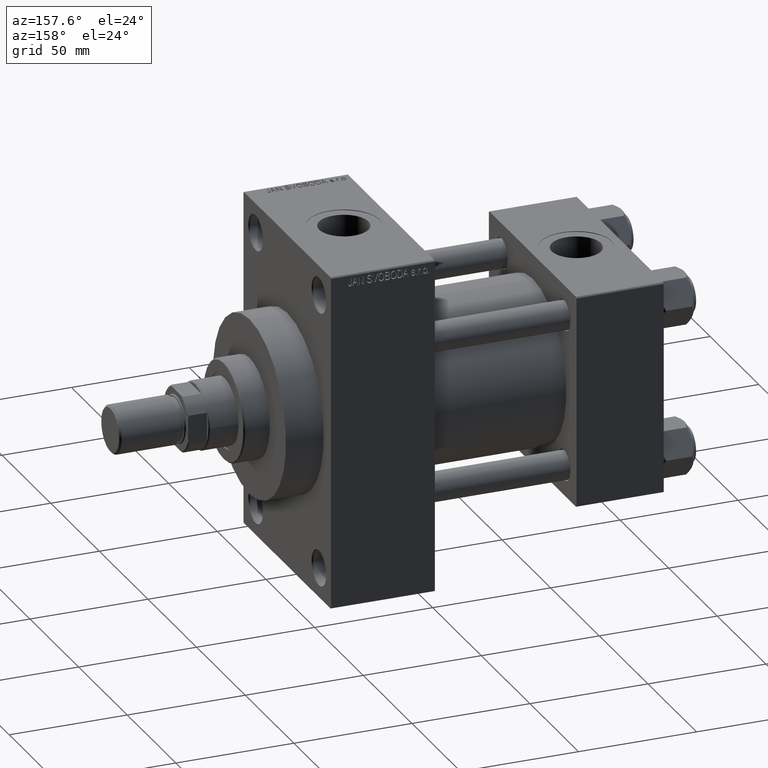
[diagram: clean part render]
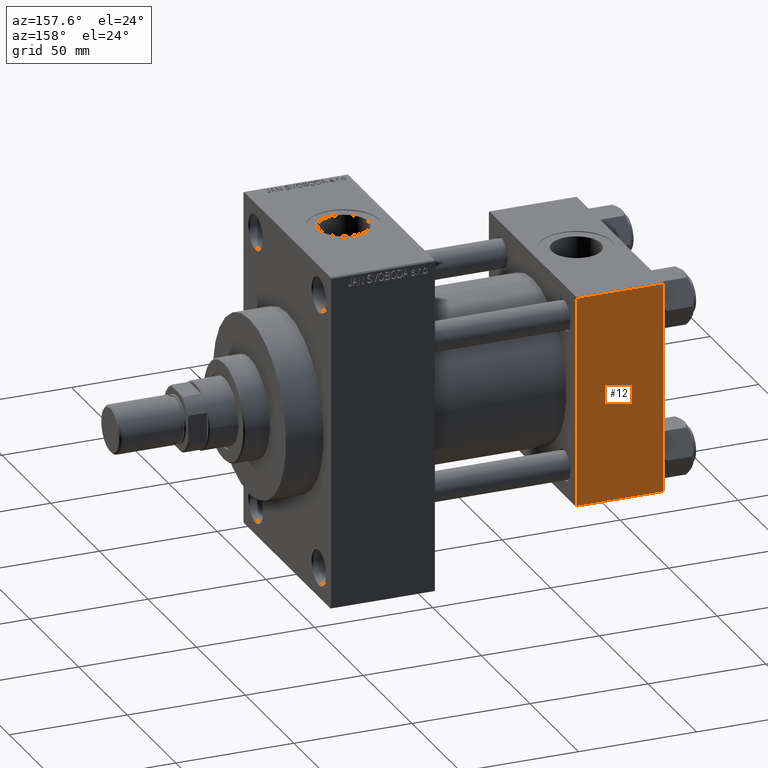
[diagram: same view with one face highlighted and labeled with its STEP entity id]
A machine part, auxiliary view. The second image highlights one B-rep face of the part: STEP entity #12.
In plain terms, the highlighted planar face has unit normal (0, 1, 0).
Its self-contained STEP definition (entity closure, byte-faithful):
#12 = ADVANCED_FACE ( 'NONE', ( #41352 ), #635, .T. ) ;
#635 = PLANE ( 'NONE',  #32876 ) ;
#2261 = DIRECTION ( 'NONE',  ( 0.000000000000000000, 0.000000000000000000, -1.000000000000000000 ) ) ;
#2811 = VERTEX_POINT ( 'NONE', #47557 ) ;
#3410 = VERTEX_POINT ( 'NONE', #16994 ) ;
#4137 = LINE ( 'NONE', #26313, #22432 ) ;
#4480 = DIRECTION ( 'NONE',  ( 0.000000000000000000, -0.000000000000000000, 1.000000000000000000 ) ) ;
#4626 = DIRECTION ( 'NONE',  ( -1.000000000000000000, 0.000000000000000000, 0.000000000000000000 ) ) ;
#4683 = VECTOR ( 'NONE', #12427, 1000.000000000000000 ) ;
#6075 = VERTEX_POINT ( 'NONE', #22780 ) ;
#7868 = ORIENTED_EDGE ( 'NONE', *, *, #12443, .T. ) ;
#8262 = ORIENTED_EDGE ( 'NONE', *, *, #10533, .F. ) ;
#8807 = VERTEX_POINT ( 'NONE', #33719 ) ;
#10533 = EDGE_CURVE ( 'NONE', #6075, #8807, #42755, .T. ) ;
#11894 = EDGE_CURVE ( 'NONE', #3410, #8807, #37172, .T. ) ;
#12427 = DIRECTION ( 'NONE',  ( 1.000000000000000000, 0.000000000000000000, 0.000000000000000000 ) ) ;
#12443 = EDGE_CURVE ( 'NONE', #6075, #2811, #23247, .T. ) ;
#13538 = ORIENTED_EDGE ( 'NONE', *, *, #11894, .T. ) ;
#15725 = CARTESIAN_POINT ( 'NONE',  ( 37.00000000000000000, 44.99999999999998579, -44.49999999999998579 ) ) ;
#16992 = VECTOR ( 'NONE', #4626, 1000.000000000000000 ) ;
#16994 = CARTESIAN_POINT ( 'NONE',  ( 37.00000000000000000, 44.99999999999998579, -44.49999999999995737 ) ) ;
#18858 = DIRECTION ( 'NONE',  ( 0.000000000000000000, 0.000000000000000000, -1.000000000000000000 ) ) ;
#22432 = VECTOR ( 'NONE', #18858, 1000.000000000000000 ) ;
#22567 = CARTESIAN_POINT ( 'NONE',  ( 37.00000000000000000, 44.99999999999998579, 45.00000000000001421 ) ) ;
#22780 = CARTESIAN_POINT ( 'NONE',  ( 0.000000000000000000, 44.99999999999998579, 44.50000000000001421 ) ) ;
#23247 = LINE ( 'NONE', #45432, #4683 ) ;
#26156 = VECTOR ( 'NONE', #2261, 1000.000000000000000 ) ;
#26313 = CARTESIAN_POINT ( 'NONE',  ( 37.00000000000000000, 44.99999999999998579, 45.00000000000001421 ) ) ;
#31915 = CARTESIAN_POINT ( 'NONE',  ( 0.000000000000000000, 44.99999999999998579, 45.00000000000001421 ) ) ;
#32876 = AXIS2_PLACEMENT_3D ( 'NONE', #22567, #44982, #4480 ) ;
#33719 = CARTESIAN_POINT ( 'NONE',  ( 0.000000000000000000, 44.99999999999998579, -44.49999999999995737 ) ) ;
#36043 = ORIENTED_EDGE ( 'NONE', *, *, #37430, .T. ) ;
#37172 = LINE ( 'NONE', #15725, #16992 ) ;
#37430 = EDGE_CURVE ( 'NONE', #2811, #3410, #4137, .T. ) ;
#39002 = EDGE_LOOP ( 'NONE', ( #36043, #13538, #8262, #7868 ) ) ;
#41352 = FACE_OUTER_BOUND ( 'NONE', #39002, .T. ) ;
#42755 = LINE ( 'NONE', #31915, #26156 ) ;
#44982 = DIRECTION ( 'NONE',  ( -0.000000000000000000, 1.000000000000000000, 0.000000000000000000 ) ) ;
#45432 = CARTESIAN_POINT ( 'NONE',  ( 37.00000000000000000, 44.99999999999998579, 44.50000000000001421 ) ) ;
#47557 = CARTESIAN_POINT ( 'NONE',  ( 37.00000000000000000, 44.99999999999998579, 44.50000000000001421 ) ) ;